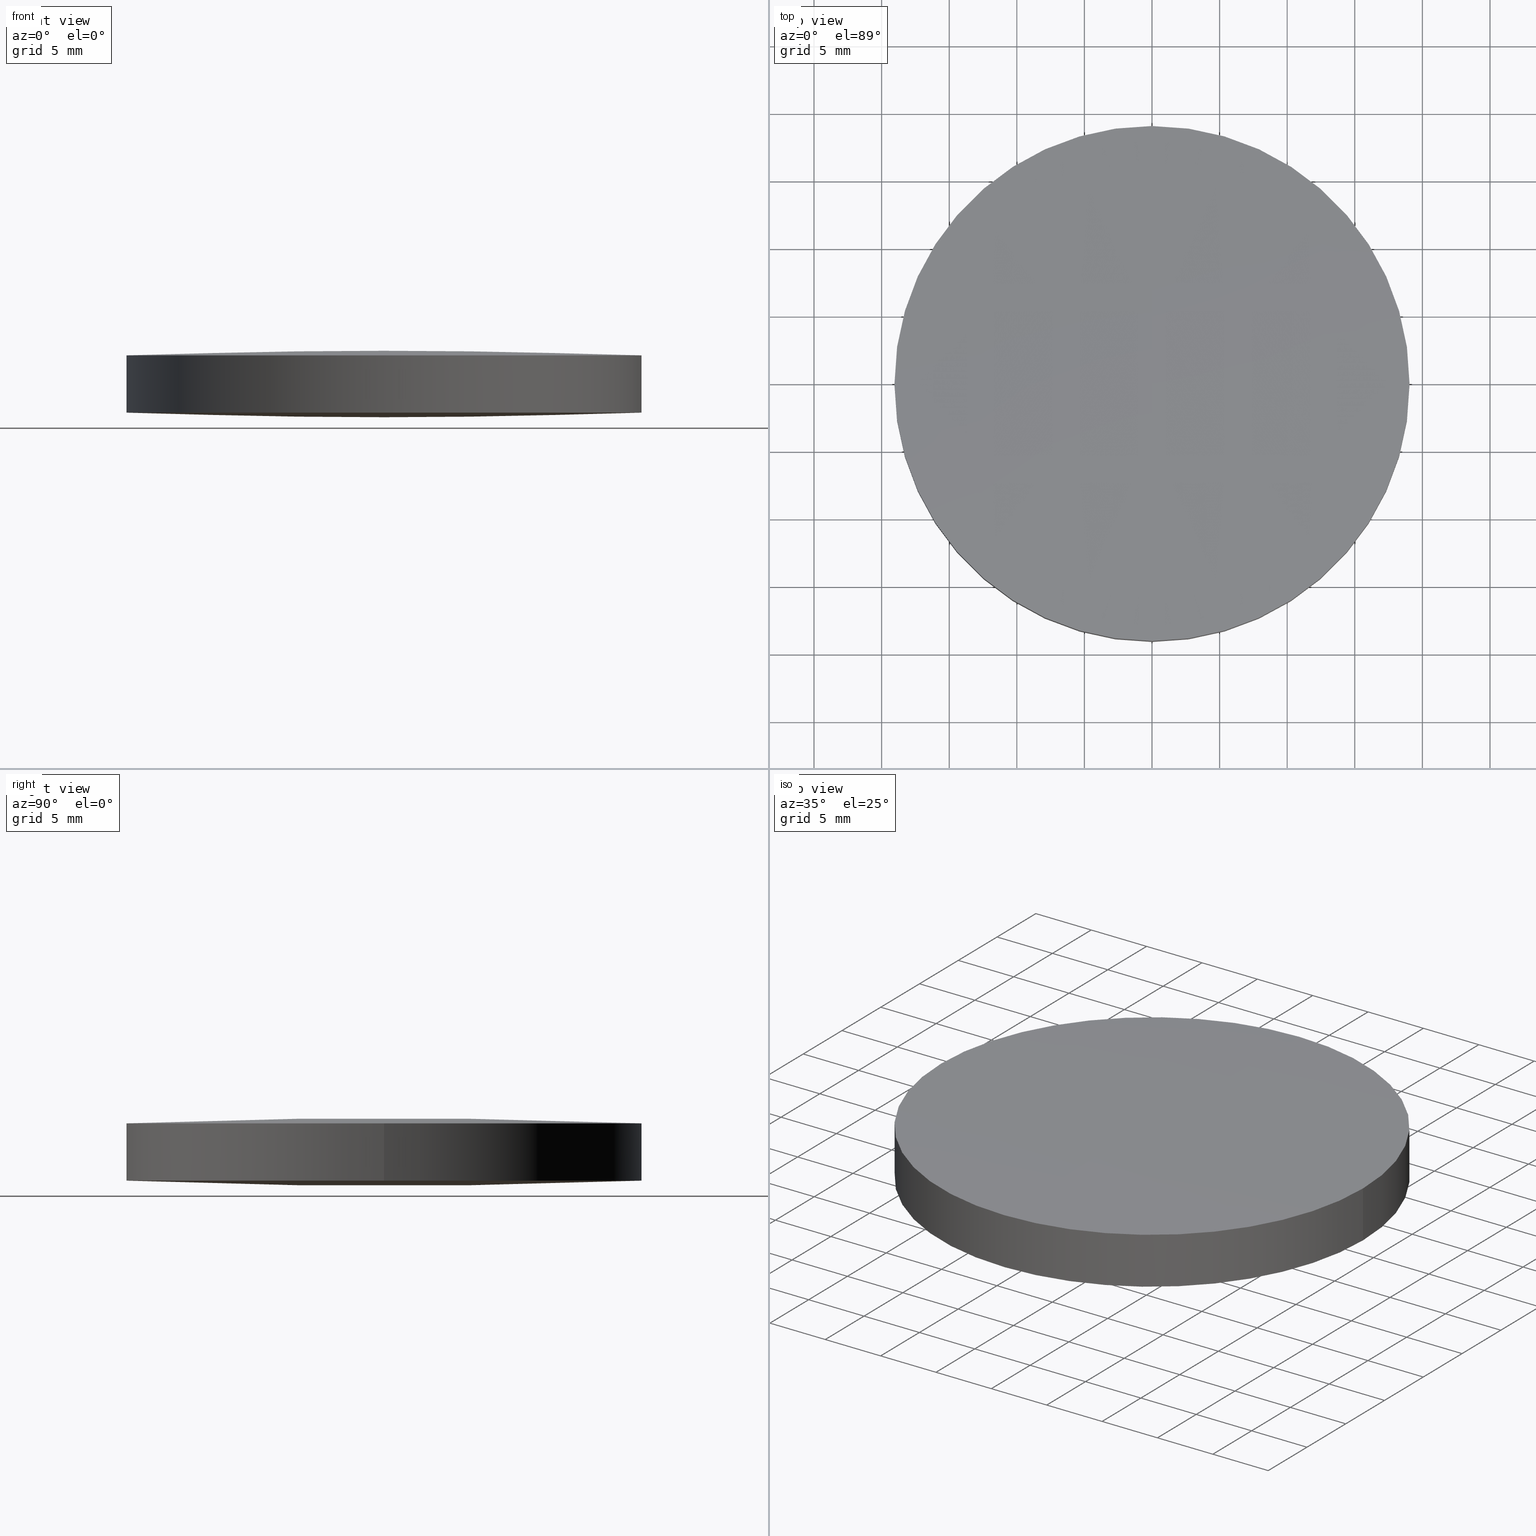
[diagram: canonical four-view strip — front | top / right | iso, engineering-drawing reading convention]
A machine part, canonical four-view strip (front | top / right | iso — engineering-drawing reading convention). The complete STEP part file that produces these views, byte-faithful:
ISO-10303-21;
HEADER;
FILE_DESCRIPTION (( 'STEP AP203' ),
    '1' );
FILE_NAME ('111-1434E UVFS bi-cx 38.1 F500.STEP',
    '2019-01-08T07:55:42',
    ( '' ),
    ( '' ),
    'SwSTEP 2.0',
    'SolidWorks 2017',
    '' );
FILE_SCHEMA (( 'CONFIG_CONTROL_DESIGN' ));
ENDSEC;

DATA;
#1 = EDGE_CURVE ( 'NONE', #210, #95, #18, .T. ) ;
#2 = ORIENTED_EDGE ( 'NONE', *, *, #119, .F. ) ;
#3 = DIRECTION ( 'NONE',  ( 1.000000000000000000, 0.0000000000000000000, 0.0000000000000000000 ) ) ;
#4 = CARTESIAN_POINT ( 'NONE',  ( 0.0000000000000000000, -2.842170943040400100E-014, 475.2641939237290700 ) ) ;
#5 = ORIENTED_EDGE ( 'NONE', *, *, #215, .F. ) ;
#6 = CARTESIAN_POINT ( 'NONE',  ( -19.16949876273363200, -6.429686377467061400, 4.743813318143864400 ) ) ;
#7 = CARTESIAN_POINT ( 'NONE',  ( -19.14846515180225600, 19.27847528127603700, 4.222613795022307500 ) ) ;
#8 = MANIFOLD_SOLID_BREP ( 'Imported1', #145 ) ;
#9 = CARTESIAN_POINT ( 'NONE',  ( 19.04999999999999700, -8.881784197001250400E-016, 4.618056245691300400 ) ) ;
#10 = DIRECTION ( 'NONE',  ( -2.913971193241879900E-018, -1.358596498406960000E-034, -1.000000000000000000 ) ) ;
#11 = DIRECTION ( 'NONE',  ( 1.000000000000000000, 0.0000000000000000000, 0.0000000000000000000 ) ) ;
#12 = CARTESIAN_POINT ( 'NONE',  ( 12.76867264870312900, 19.27847528127602700, 0.5199222830434634400 ) ) ;
#13 = SECURITY_CLASSIFICATION ( '', '', #209 ) ;
#14 = PERSON_AND_ORGANIZATION_ROLE ( 'creator' ) ;
#15 = APPROVAL_STATUS ( 'not_yet_approved' ) ;
#16 = PERSON_AND_ORGANIZATION ( #157, #289 ) ;
#17 = MECHANICAL_CONTEXT ( 'NONE', #237, 'mechanical' ) ;
#18 = CIRCLE ( 'NONE', #91, 19.05000000000000100 ) ;
#19 = CIRCLE ( 'NONE', #103, 475.2641939237290700 ) ;
#20 = AXIS2_PLACEMENT_3D ( 'NONE', #242, #197, #80 ) ;
#21 = APPROVAL_DATE_TIME ( #202, #71 ) ;
#22 = CC_DESIGN_DATE_AND_TIME_ASSIGNMENT ( #201, #115, ( #193 ) ) ;
#23 = ORIENTED_EDGE ( 'NONE', *, *, #61, .F. ) ;
#24 = LOCAL_TIME ( 9, 55, 41.00000000000000000, #150 ) ;
#25 = CARTESIAN_POINT ( 'NONE',  ( 19.16949876273368500, -6.429686377467067600, 0.2561866818561408500 ) ) ;
#26 = CARTESIAN_POINT ( 'NONE',  ( 0.0000000000000000000, -2.842170943040400100E-014, -470.2641939237290100 ) ) ;
#27 = LINE ( 'NONE', #130, #135 ) ;
#28 = CARTESIAN_POINT ( 'NONE',  ( -12.78269838342802700, -6.429686377467062300, -0.001560051045970624200 ) ) ;
#29 = CARTESIAN_POINT ( 'NONE',  ( -19.14846515180224900, -19.27847528127615800, 4.222613795022307500 ) ) ;
#30 = PRODUCT ( '111-1434E UVFS bi-cx 38.1 F500', '111-1434E UVFS bi-cx 38.1 F500', '', ( #17 ) ) ;
#31 = CARTESIAN_POINT ( 'NONE',  ( 6.384985517109417000, 19.27847528127603000, 0.3911641391337580800 ) ) ;
#32 = CIRCLE ( 'NONE', #277, 475.2641939237290700 ) ;
#33 = DIRECTION ( 'NONE',  ( 2.913971193241879900E-018, 1.358596498406960000E-034, 1.000000000000000000 ) ) ;
#34 = PERSON_AND_ORGANIZATION ( #157, #289 ) ;
#35 = CARTESIAN_POINT ( 'NONE',  ( 6.391999097577104800, -6.429686377467057000, 5.130459629200199600 ) ) ;
#36 = FACE_OUTER_BOUND ( 'NONE', #230, .T. ) ;
#37 = ORIENTED_EDGE ( 'NONE', *, *, #244, .F. ) ;
#38 = APPROVAL_STATUS ( 'not_yet_approved' ) ;
#39 = EDGE_CURVE ( 'NONE', #56, #210, #100, .T. ) ;
#40 = COORDINATED_UNIVERSAL_TIME_OFFSET ( 2, 0, .AHEAD. ) ;
#41 = VERTEX_POINT ( 'NONE', #222 ) ;
#42 = ORIENTED_EDGE ( 'NONE', *, *, #52, .F. ) ;
#43 = APPROVAL_PERSON_ORGANIZATION ( #93, #134, #291 ) ;
#44 = DIRECTION ( 'NONE',  ( 1.000000000000000000, -2.445677697528830200E-016, -2.113563270613760000E-016 ) ) ;
#45 = CARTESIAN_POINT ( 'NONE',  ( 19.14846515180230600, 19.27847528127603000, 0.7773862049776968400 ) ) ;
#46 = CARTESIAN_POINT ( 'NONE',  ( -12.78269838342802700, 6.429686377466937100, -0.001560051045968672700 ) ) ;
#47 = CARTESIAN_POINT ( 'NONE',  ( -12.76867264870308500, -19.27847528127615500, 4.480077716956539100 ) ) ;
#48 = CARTESIAN_POINT ( 'NONE',  ( -12.78269838342772300, 6.429686377466939700, 5.001560051045965200 ) ) ;
#49 = ORIENTED_EDGE ( 'NONE', *, *, #286, .T. ) ;
#50 = DIRECTION ( 'NONE',  ( -2.913971193241879900E-018, -1.358596498406960000E-034, -1.000000000000000000 ) ) ;
#51 = PRODUCT_DEFINITION_FORMATION_WITH_SPECIFIED_SOURCE ( 'ANY', '', #30, .NOT_KNOWN. ) ;
#52 = EDGE_CURVE ( 'NONE', #68, #225, #32, .T. ) ;
#53 = CARTESIAN_POINT ( 'NONE',  ( 19.16949876273392700, -6.429686377467053400, 4.743813318143868000 ) ) ;
#54 = CYLINDRICAL_SURFACE ( 'NONE', #163, 19.05000000000000100 ) ;
#55 = APPROVAL_STATUS ( 'not_yet_approved' ) ;
#56 = VERTEX_POINT ( 'NONE', #169 ) ;
#57 = DATE_AND_TIME ( #154, #283 ) ;
#58 = EDGE_LOOP ( 'NONE', ( #5, #240, #101 ) ) ;
#59 = CARTESIAN_POINT ( 'NONE',  ( -4.662936703425659800E-015, -8.881784197001250400E-016, 0.3819437543087000300 ) ) ;
#60 = CC_DESIGN_PERSON_AND_ORGANIZATION_ASSIGNMENT ( #198, #232, ( #13 ) ) ;
#61 = EDGE_CURVE ( 'NONE', #89, #41, #196, .T. ) ;
#62 = CARTESIAN_POINT ( 'NONE',  ( -19.05000000000000400, 1.444773732675583000E-015, 0.3819437543087000900 ) ) ;
#63 = CARTESIAN_POINT ( 'NONE',  ( 9.565252569200171800E-014, 19.27847528127604100, 4.608835860866245000 ) ) ;
#64 = CARTESIAN_POINT ( 'NONE',  ( 19.14846515180229500, -19.27847528127616500, 0.7773862049776968400 ) ) ;
#65 = CARTESIAN_POINT ( 'NONE',  ( -2.151057110211241000E-013, 6.429686377466934400, -0.1304596292001961300 ) ) ;
#66 = CARTESIAN_POINT ( 'NONE',  ( -6.384985517109697600, 19.27847528127603000, 0.3911641391337928900 ) ) ;
#67 = DIRECTION ( 'NONE',  ( 1.000000000000000000, 0.0000000000000000000, -2.845674993400274200E-018 ) ) ;
#68 = VERTEX_POINT ( 'NONE', #248 ) ;
#69 = CIRCLE ( 'NONE', #142, 19.05000000000000100 ) ;
#70 = CARTESIAN_POINT ( 'NONE',  ( 19.14846515180254700, 19.27847528127604400, 4.222613795022311900 ) ) ;
#71 = APPROVAL ( #55, 'UNSPECIFIED' ) ;
#72 = DIRECTION ( 'NONE',  ( 0.0000000000000000000, 0.0000000000000000000, 1.000000000000000000 ) ) ;
#73 = PERSON_AND_ORGANIZATION_ROLE ( 'creator' ) ;
#74 = FACE_OUTER_BOUND ( 'NONE', #133, .T. ) ;
#75 = ADVANCED_FACE ( 'NONE', ( #288 ), #84, .T. ) ;
#76 = EDGE_CURVE ( 'NONE', #68, #89, #261, .T. ) ;
#77 = FACE_OUTER_BOUND ( 'NONE', #58, .T. ) ;
#78 = CALENDAR_DATE ( 2019, 8, 1 ) ;
#79 = ORIENTED_EDGE ( 'NONE', *, *, #1, .T. ) ;
#80 = DIRECTION ( 'NONE',  ( 1.000000000000000000, 8.881784197001252300E-016, 0.0000000000000000000 ) ) ;
#81 = COORDINATED_UNIVERSAL_TIME_OFFSET ( 2, 0, .AHEAD. ) ;
#82 = CARTESIAN_POINT ( 'NONE',  ( -9.571035216865770700E-014, 19.05000000000014300, 0.3819437543087111400 ) ) ;
#83 = CARTESIAN_POINT ( 'NONE',  ( -4.650592793654439200E-015, -8.881784197001250400E-016, 4.618056245691300400 ) ) ;
#84 = CYLINDRICAL_SURFACE ( 'NONE', #183, 19.05000000000000100 ) ;
#85 = CARTESIAN_POINT ( 'NONE',  ( -6.384985517109390300, -19.27847528127615100, 4.608835860866245900 ) ) ;
#86 = COORDINATED_UNIVERSAL_TIME_OFFSET ( 2, 0, .AHEAD. ) ;
#87 = CARTESIAN_POINT ( 'NONE',  ( -6.384985517109704700, -19.27847528127615800, 0.3911641391337929400 ) ) ;
#88 = CARTESIAN_POINT ( 'NONE',  ( -9.890517382201484500E-014, 6.429686377466935300, -0.1304596292002267200 ) ) ;
#89 = VERTEX_POINT ( 'NONE', #62 ) ;
#90 = CARTESIAN_POINT ( 'NONE',  ( -4.662936703425659800E-015, -8.881784197001250400E-016, 0.3819437543087000300 ) ) ;
#91 = AXIS2_PLACEMENT_3D ( 'NONE', #83, #223, #3 ) ;
#92 = CARTESIAN_POINT ( 'NONE',  ( 6.391999097577104800, 6.429686377466943300, 5.130459629200198700 ) ) ;
#93 = PERSON_AND_ORGANIZATION ( #157, #289 ) ;
#94 = APPLICATION_PROTOCOL_DEFINITION ( 'international standard', 'config_control_design', 1994, #237 ) ;
#95 = VERTEX_POINT ( 'NONE', #151 ) ;
#96 = CARTESIAN_POINT ( 'NONE',  ( 6.384985517109697600, 19.27847528127603700, 4.608835860866211200 ) ) ;
#97 = AXIS2_PLACEMENT_3D ( 'NONE', #59, #228, #153 ) ;
#98 = ORIENTED_EDGE ( 'NONE', *, *, #265, .F. ) ;
#99 = CC_DESIGN_PERSON_AND_ORGANIZATION_ASSIGNMENT ( #34, #141, ( #51 ) ) ;
#100 = CIRCLE ( 'NONE', #20, 19.05000000000000100 ) ;
#101 = ORIENTED_EDGE ( 'NONE', *, *, #168, .F. ) ;
#102 = CARTESIAN_POINT ( 'NONE',  ( -4.662936703425659800E-015, -8.881784197001250400E-016, 0.3819437543087000300 ) ) ;
#103 = AXIS2_PLACEMENT_3D ( 'NONE', #26, #275, #175 ) ;
#104 = DIRECTION ( 'NONE',  ( -2.445677697528829200E-016, -1.000000000000000000, 2.336012346015964100E-016 ) ) ;
#105 = ORIENTED_EDGE ( 'NONE', *, *, #286, .F. ) ;
#106 = CARTESIAN_POINT ( 'NONE',  ( -2.081668171172168500E-013, 19.27847528127603400, 0.3911641391337900600 ) ) ;
#107 = CARTESIAN_POINT ( 'NONE',  ( -19.14846515180254700, 19.27847528127603700, 0.7773862049776925100 ) ) ;
#108 = CARTESIAN_POINT ( 'NONE',  ( 6.384985517109407200, -19.27847528127615800, 0.3911641391337580800 ) ) ;
#109 = ORIENTED_EDGE ( 'NONE', *, *, #76, .F. ) ;
#110 = CARTESIAN_POINT ( 'NONE',  ( 6.391999097576814400, 6.429686377466933500, -0.1304596292002280800 ) ) ;
#111 = APPLICATION_CONTEXT ( 'configuration controlled 3d designs of mechanical parts and assemblies' ) ;
#112 = VECTOR ( 'NONE', #269, 1000.000000000000000 ) ;
#113 = CARTESIAN_POINT ( 'NONE',  ( 19.14846515180255400, -19.27847528127615100, 4.222613795022311900 ) ) ;
#114 = CARTESIAN_POINT ( 'NONE',  ( 2.151057110211241000E-013, -6.429686377467057800, 5.130459629200202300 ) ) ;
#115 = DATE_TIME_ROLE ( 'creation_date' ) ;
#116 = CC_DESIGN_APPROVAL ( #71, ( #193 ) ) ;
#117 = EDGE_LOOP ( 'NONE', ( #98, #221, #216, #166, #37, #2 ) ) ;
#118 = COORDINATED_UNIVERSAL_TIME_OFFSET ( 2, 0, .AHEAD. ) ;
#119 = EDGE_CURVE ( 'NONE', #225, #255, #267, .T. ) ;
#120 = DIRECTION ( 'NONE',  ( -2.913971193241879900E-018, -1.358596498406960000E-034, -1.000000000000000000 ) ) ;
#121 = EDGE_LOOP ( 'NONE', ( #42, #167, #270 ) ) ;
#122 = CARTESIAN_POINT ( 'NONE',  ( -19.14846515180255400, -19.27847528127615800, 0.7773862049776925100 ) ) ;
#123 = CARTESIAN_POINT ( 'NONE',  ( -1.050823130995572400E-013, -19.27847528127616200, 0.3911641391337594700 ) ) ;
#124 = CARTESIAN_POINT ( 'NONE',  ( 9.890517382201487000E-014, 6.429686377466942400, 5.130459629200231600 ) ) ;
#125 = CC_DESIGN_PERSON_AND_ORGANIZATION_ASSIGNMENT ( #188, #73, ( #193 ) ) ;
#126 = EDGE_CURVE ( 'NONE', #95, #56, #19, .T. ) ;
#127 = CARTESIAN_POINT ( 'NONE',  ( -12.76867264870339000, 19.27847528127603400, 0.5199222830434565600 ) ) ;
#128 = CARTESIAN_POINT ( 'NONE',  ( 12.78269838342775700, 6.429686377466932600, -0.001560051045961950600 ) ) ;
#129 = CARTESIAN_POINT ( 'NONE',  ( 19.16949876273368900, 6.429686377466930800, 0.2561866818561427900 ) ) ;
#130 = CARTESIAN_POINT ( 'NONE',  ( 19.04999999999999700, -8.881784197001250400E-016, 0.3819437543086999200 ) ) ;
#131 = PRODUCT_DEFINITION_SHAPE ( 'NONE', 'NONE',  #193 ) ;
#132 = CARTESIAN_POINT ( 'NONE',  ( 2.081668171172168500E-013, 19.27847528127604100, 4.608835860866214800 ) ) ;
#133 = EDGE_LOOP ( 'NONE', ( #23, #109, #105, #158, #79, #165 ) ) ;
#134 = APPROVAL ( #15, 'UNSPECIFIED' ) ;
#135 = VECTOR ( 'NONE', #156, 1000.000000000000000 ) ;
#136 = CARTESIAN_POINT ( 'NONE',  ( 0.0000000000000000000, 0.0000000000000000000, 0.0000000000000000000 ) ) ;
#137 = APPROVAL_DATE_TIME ( #57, #182 ) ;
#138 = LOCAL_TIME ( 9, 55, 41.00000000000000000, #40 ) ;
#139 = CARTESIAN_POINT ( 'NONE',  ( 12.78269838342802700, 6.429686377466944200, 5.001560051045973200 ) ) ;
#140 = CARTESIAN_POINT ( 'NONE',  ( 19.16949876273392700, 6.429686377466945900, 4.743813318143867100 ) ) ;
#141 = PERSON_AND_ORGANIZATION_ROLE ( 'design_supplier' ) ;
#142 = AXIS2_PLACEMENT_3D ( 'NONE', #227, #252, #11 ) ;
#143 = PERSON_AND_ORGANIZATION ( #157, #289 ) ;
#144 = ADVANCED_FACE ( 'NONE', ( #256 ), #170, .T. ) ;
#145 = CLOSED_SHELL ( 'NONE', ( #164, #217, #75, #144, #263, #295 ) ) ;
#146 = APPROVAL_PERSON_ORGANIZATION ( #220, #71, #214 ) ;
#147 = AXIS2_PLACEMENT_3D ( 'NONE', #136, #72, #233 ) ;
#148 = AXIS2_PLACEMENT_3D ( 'NONE', #254, #235, #185 ) ;
#149 = AXIS2_PLACEMENT_3D ( 'NONE', #276, #10, #249 ) ;
#150 = COORDINATED_UNIVERSAL_TIME_OFFSET ( 2, 0, .AHEAD. ) ;
#151 = CARTESIAN_POINT ( 'NONE',  ( 1.050283841962426500E-013, -19.05000000000017100, 4.618056245691290600 ) ) ;
#152 = CARTESIAN_POINT ( 'NONE',  ( -9.565252569200169300E-014, 19.27847528127603400, 0.3911641391337594700 ) ) ;
#153 = DIRECTION ( 'NONE',  ( 1.000000000000000000, -1.776356839400250500E-015, -2.845674993400274200E-018 ) ) ;
#154 = CALENDAR_DATE ( 2019, 8, 1 ) ;
#155 = CARTESIAN_POINT ( 'NONE',  ( -2.151057110211240800E-013, -19.27847528127616200, 0.3911641391337901700 ) ) ;
#156 = DIRECTION ( 'NONE',  ( 2.913971193241879900E-018, 1.358596498406960000E-034, 1.000000000000000000 ) ) ;
#157 = PERSON ( 'UNSPECIFIED', 'UNSPECIFIED', 'UNSPECIFIED', ('UNSPECIFIED'), ('UNSPECIFIED'), ('UNSPECIFIED') ) ;
#158 = ORIENTED_EDGE ( 'NONE', *, *, #244, .T. ) ;
#159 = DATE_TIME_ROLE ( 'classification_date' ) ;
#160 = ORIENTED_EDGE ( 'NONE', *, *, #39, .F. ) ;
#161 = CC_DESIGN_APPROVAL ( #182, ( #13 ) ) ;
#162 = PERSON_AND_ORGANIZATION_ROLE ( 'design_owner' ) ;
#163 = AXIS2_PLACEMENT_3D ( 'NONE', #247, #33, #181 ) ;
#164 = ADVANCED_FACE ( 'NONE', ( #36 ), #293, .T. ) ;
#165 = ORIENTED_EDGE ( 'NONE', *, *, #215, .T. ) ;
#166 = ORIENTED_EDGE ( 'NONE', *, *, #39, .T. ) ;
#167 = ORIENTED_EDGE ( 'NONE', *, *, #76, .T. ) ;
#168 = EDGE_CURVE ( 'NONE', #41, #56, #69, .T. ) ;
#169 = CARTESIAN_POINT ( 'NONE',  ( 9.571035216865772000E-014, 19.05000000000014300, 4.618056245691290600 ) ) ;
#170 =( BOUNDED_SURFACE ( )  B_SPLINE_SURFACE ( 3, 3, ( 
 ( #122, #245, #87, #155 ),
 ( #250, #28, #226, #178 ),
 ( #205, #46, #203, #65 ),
 ( #107, #127, #66, #106 ) ),
 .UNSPECIFIED., .F., .F., .F. ) 
 B_SPLINE_SURFACE_WITH_KNOTS ( ( 4, 4 ),
 ( 4, 4 ),
 ( 0.0000000000000000000, 1.000000000000000000 ),
 ( 0.0000000000000000000, 1.000000000000000000 ),
 .UNSPECIFIED. ) 
 GEOMETRIC_REPRESENTATION_ITEM ( )  RATIONAL_B_SPLINE_SURFACE ( (
 ( 1.000000000000000000, 0.9998644334679308600, 0.9998644334679308600, 1.000000000000000000),
 ( 0.9994513028835543300, 0.9993158107364503700, 0.9993158107364503700, 0.9994513028835543300),
 ( 0.9994513028835543300, 0.9993158107364503700, 0.9993158107364503700, 0.9994513028835543300),
 ( 1.000000000000000000, 0.9998644334679308600, 0.9998644334679308600, 1.000000000000000000) ) ) 
 REPRESENTATION_ITEM ( '' )  SURFACE ( )  );
#171 = DIRECTION ( 'NONE',  ( 2.913971193241879900E-018, 1.358596498406960000E-034, 1.000000000000000000 ) ) ;
#172 = LOCAL_TIME ( 9, 55, 41.00000000000000000, #118 ) ;
#173 = CIRCLE ( 'NONE', #194, 19.05000000000000100 ) ;
#174 = CARTESIAN_POINT ( 'NONE',  ( -4.662936703425659800E-015, -8.881784197001250400E-016, 0.3819437543086999800 ) ) ;
#175 = DIRECTION ( 'NONE',  ( 2.445677697528829700E-016, -1.000000000000000000, 0.0000000000000000000 ) ) ;
#176 = CARTESIAN_POINT ( 'NONE',  ( 12.76867264870311800, -19.27847528127616200, 0.5199222830434634400 ) ) ;
#177 = CC_DESIGN_PERSON_AND_ORGANIZATION_ASSIGNMENT ( #218, #14, ( #51 ) ) ;
#178 = CARTESIAN_POINT ( 'NONE',  ( -2.151057110211241000E-013, -6.429686377467065000, -0.1304596292001978500 ) ) ;
#179 = CARTESIAN_POINT ( 'NONE',  ( -6.391999097576797500, 6.429686377466940600, 5.130459629200233400 ) ) ;
#180 =( NAMED_UNIT ( * ) PLANE_ANGLE_UNIT ( ) SI_UNIT ( $, .RADIAN. ) );
#181 = DIRECTION ( 'NONE',  ( 1.000000000000000000, 0.0000000000000000000, -2.845674993400274200E-018 ) ) ;
#182 = APPROVAL ( #38, 'UNSPECIFIED' ) ;
#183 = AXIS2_PLACEMENT_3D ( 'NONE', #174, #171, #195 ) ;
#184 = ADVANCED_BREP_SHAPE_REPRESENTATION ( '111-1434E UVFS bi-cx 38.1 F500', ( #8, #147 ), #262 ) ;
#185 = DIRECTION ( 'NONE',  ( 1.000000000000000000, 8.881784197001252300E-016, -2.845674993400274200E-018 ) ) ;
#186 =( LENGTH_UNIT ( ) NAMED_UNIT ( * ) SI_UNIT ( .MILLI., .METRE. ) );
#187 = APPLICATION_PROTOCOL_DEFINITION ( 'international standard', 'config_control_design', 1994, #111 ) ;
#188 = PERSON_AND_ORGANIZATION ( #157, #289 ) ;
#189 = SHAPE_DEFINITION_REPRESENTATION ( #131, #184 ) ;
#190 = AXIS2_PLACEMENT_3D ( 'NONE', #102, #120, #224 ) ;
#191 = DESIGN_CONTEXT ( 'detailed design', #111, 'design' ) ;
#192 = CIRCLE ( 'NONE', #149, 19.05000000000000100 ) ;
#193 = PRODUCT_DEFINITION ( 'UNKNOWN', '', #51, #191 ) ;
#194 = AXIS2_PLACEMENT_3D ( 'NONE', #90, #50, #67 ) ;
#195 = DIRECTION ( 'NONE',  ( 1.000000000000000000, 0.0000000000000000000, -2.845674993400274200E-018 ) ) ;
#196 = LINE ( 'NONE', #271, #112 ) ;
#197 = DIRECTION ( 'NONE',  ( -2.913971193241879900E-018, -1.358596498406960000E-034, -1.000000000000000000 ) ) ;
#198 = PERSON_AND_ORGANIZATION ( #157, #289 ) ;
#199 = CARTESIAN_POINT ( 'NONE',  ( 1.050823130995572600E-013, -19.27847528127615500, 4.608835860866245000 ) ) ;
#200 = CARTESIAN_POINT ( 'NONE',  ( -6.391999097576794000, -6.429686377467059600, 5.130459629200235100 ) ) ;
#201 = DATE_AND_TIME ( #219, #172 ) ;
#202 = DATE_AND_TIME ( #268, #251 ) ;
#203 = CARTESIAN_POINT ( 'NONE',  ( -6.391999097577104800, 6.429686377466936200, -0.1304596292001932400 ) ) ;
#204 = CARTESIAN_POINT ( 'NONE',  ( -1.020501619371100500E-013, -6.429686377467064100, -0.1304596292002286900 ) ) ;
#205 = CARTESIAN_POINT ( 'NONE',  ( -19.16949876273392700, 6.429686377466938800, 0.2561866818561384700 ) ) ;
#206 = CARTESIAN_POINT ( 'NONE',  ( -12.76867264870309200, 19.27847528127603400, 4.480077716956539100 ) ) ;
#207 = CARTESIAN_POINT ( 'NONE',  ( -19.16949876273363500, 6.429686377466937900, 4.743813318143862600 ) ) ;
#208 = CC_DESIGN_APPROVAL ( #134, ( #51 ) ) ;
#209 = SECURITY_CLASSIFICATION_LEVEL ( 'unclassified' ) ;
#210 = VERTEX_POINT ( 'NONE', #9 ) ;
#211 =( BOUNDED_SURFACE ( )  B_SPLINE_SURFACE ( 3, 3, ( 
 ( #199, #85, #47, #29 ),
 ( #279, #200, #274, #6 ),
 ( #124, #179, #48, #207 ),
 ( #63, #231, #206, #7 ) ),
 .UNSPECIFIED., .F., .F., .F. ) 
 B_SPLINE_SURFACE_WITH_KNOTS ( ( 4, 4 ),
 ( 4, 4 ),
 ( 0.0000000000000000000, 1.000000000000000000 ),
 ( 0.0000000000000000000, 1.000000000000000000 ),
 .UNSPECIFIED. ) 
 GEOMETRIC_REPRESENTATION_ITEM ( )  RATIONAL_B_SPLINE_SURFACE ( (
 ( 1.000000000000000000, 0.9998644334679308600, 0.9998644334679308600, 1.000000000000000000),
 ( 0.9994513028835543300, 0.9993158107364503700, 0.9993158107364503700, 0.9994513028835543300),
 ( 0.9994513028835543300, 0.9993158107364503700, 0.9993158107364503700, 0.9994513028835543300),
 ( 1.000000000000000000, 0.9998644334679308600, 0.9998644334679308600, 1.000000000000000000) ) ) 
 REPRESENTATION_ITEM ( '' )  SURFACE ( )  );
#212 = APPROVAL_PERSON_ORGANIZATION ( #143, #182, #239 ) ;
#213 = CARTESIAN_POINT ( 'NONE',  ( 2.151057110211241000E-013, 6.429686377466941500, 5.130459629200201400 ) ) ;
#214 = APPROVAL_ROLE ( '' ) ;
#215 = EDGE_CURVE ( 'NONE', #95, #41, #192, .T. ) ;
#216 = ORIENTED_EDGE ( 'NONE', *, *, #168, .T. ) ;
#217 = ADVANCED_FACE ( 'NONE', ( #77 ), #211, .T. ) ;
#218 = PERSON_AND_ORGANIZATION ( #157, #289 ) ;
#219 = CALENDAR_DATE ( 2019, 8, 1 ) ;
#220 = PERSON_AND_ORGANIZATION ( #157, #289 ) ;
#221 = ORIENTED_EDGE ( 'NONE', *, *, #61, .T. ) ;
#222 = CARTESIAN_POINT ( 'NONE',  ( -19.05000000000000400, 1.444773732675583000E-015, 4.618056245691300400 ) ) ;
#223 = DIRECTION ( 'NONE',  ( -2.913971193241879900E-018, -1.358596498406960000E-034, -1.000000000000000000 ) ) ;
#224 = DIRECTION ( 'NONE',  ( 1.000000000000000000, 0.0000000000000000000, -2.845674993400274200E-018 ) ) ;
#225 = VERTEX_POINT ( 'NONE', #82 ) ;
#226 = CARTESIAN_POINT ( 'NONE',  ( -6.391999097577104800, -6.429686377467063200, -0.1304596292001950200 ) ) ;
#227 = CARTESIAN_POINT ( 'NONE',  ( -4.650592793654439200E-015, -8.881784197001250400E-016, 4.618056245691300400 ) ) ;
#228 = DIRECTION ( 'NONE',  ( -2.913971193241879900E-018, -1.358596498406960000E-034, -1.000000000000000000 ) ) ;
#229 = CARTESIAN_POINT ( 'NONE',  ( 12.78269838342775300, -6.429686377467066700, -0.001560051045963793800 ) ) ;
#230 = EDGE_LOOP ( 'NONE', ( #49, #243, #292 ) ) ;
#231 = CARTESIAN_POINT ( 'NONE',  ( -6.384985517109400100, 19.27847528127603700, 4.608835860866245900 ) ) ;
#232 = PERSON_AND_ORGANIZATION_ROLE ( 'classification_officer' ) ;
#233 = DIRECTION ( 'NONE',  ( 1.000000000000000000, 0.0000000000000000000, 0.0000000000000000000 ) ) ;
#234 = CC_DESIGN_PERSON_AND_ORGANIZATION_ASSIGNMENT ( #16, #162, ( #30 ) ) ;
#235 = DIRECTION ( 'NONE',  ( -2.913971193241879900E-018, -1.358596498406960000E-034, -1.000000000000000000 ) ) ;
#236 = CIRCLE ( 'NONE', #148, 19.05000000000000100 ) ;
#237 = APPLICATION_CONTEXT ( 'configuration controlled 3d designs of mechanical parts and assemblies' ) ;
#238 = ORIENTED_EDGE ( 'NONE', *, *, #126, .F. ) ;
#239 = APPROVAL_ROLE ( '' ) ;
#240 = ORIENTED_EDGE ( 'NONE', *, *, #126, .T. ) ;
#241 = FACE_OUTER_BOUND ( 'NONE', #264, .T. ) ;
#242 = CARTESIAN_POINT ( 'NONE',  ( -4.650592793654439200E-015, -8.881784197001250400E-016, 4.618056245691300400 ) ) ;
#243 = ORIENTED_EDGE ( 'NONE', *, *, #52, .T. ) ;
#244 = EDGE_CURVE ( 'NONE', #255, #210, #27, .T. ) ;
#245 = CARTESIAN_POINT ( 'NONE',  ( -12.76867264870339500, -19.27847528127615500, 0.5199222830434565600 ) ) ;
#246 = UNCERTAINTY_MEASURE_WITH_UNIT (LENGTH_MEASURE( 1.000000000000000100E-005 ), #186, 'distance_accuracy_value', 'NONE');
#247 = CARTESIAN_POINT ( 'NONE',  ( -4.662936703425659800E-015, -8.881784197001250400E-016, 0.3819437543086999800 ) ) ;
#248 = CARTESIAN_POINT ( 'NONE',  ( -1.050283841962426400E-013, -19.05000000000017100, 0.3819437543087111400 ) ) ;
#249 = DIRECTION ( 'NONE',  ( 1.000000000000000000, 0.0000000000000000000, 0.0000000000000000000 ) ) ;
#250 = CARTESIAN_POINT ( 'NONE',  ( -19.16949876273392700, -6.429686377467060500, 0.2561866818561364700 ) ) ;
#251 = LOCAL_TIME ( 9, 55, 41.00000000000000000, #86 ) ;
#252 = DIRECTION ( 'NONE',  ( -2.913971193241879900E-018, -1.358596498406960000E-034, -1.000000000000000000 ) ) ;
#253 = PRODUCT_RELATED_PRODUCT_CATEGORY ( 'detail', '', ( #30 ) ) ;
#254 = CARTESIAN_POINT ( 'NONE',  ( -4.662936703425659800E-015, -8.881784197001250400E-016, 0.3819437543087000300 ) ) ;
#255 = VERTEX_POINT ( 'NONE', #280 ) ;
#256 = FACE_OUTER_BOUND ( 'NONE', #121, .T. ) ;
#257 =( NAMED_UNIT ( * ) SI_UNIT ( $, .STERADIAN. ) SOLID_ANGLE_UNIT ( ) );
#258 = DATE_AND_TIME ( #266, #24 ) ;
#259 = CARTESIAN_POINT ( 'NONE',  ( 12.78269838342802700, -6.429686377467056100, 5.001560051045974100 ) ) ;
#260 = CARTESIAN_POINT ( 'NONE',  ( 12.76867264870339500, -19.27847528127614800, 4.480077716956547100 ) ) ;
#261 = CIRCLE ( 'NONE', #190, 19.05000000000000100 ) ;
#262 =( GEOMETRIC_REPRESENTATION_CONTEXT ( 3 ) GLOBAL_UNCERTAINTY_ASSIGNED_CONTEXT ( ( #246 ) ) GLOBAL_UNIT_ASSIGNED_CONTEXT ( ( #186, #180, #257 ) ) REPRESENTATION_CONTEXT ( 'NONE', 'WORKASPACE' ) );
#263 = ADVANCED_FACE ( 'NONE', ( #74 ), #54, .T. ) ;
#264 = EDGE_LOOP ( 'NONE', ( #238, #281, #160 ) ) ;
#265 = EDGE_CURVE ( 'NONE', #89, #225, #236, .T. ) ;
#266 = CALENDAR_DATE ( 2019, 8, 1 ) ;
#267 = CIRCLE ( 'NONE', #97, 19.05000000000000100 ) ;
#268 = CALENDAR_DATE ( 2019, 8, 1 ) ;
#269 = DIRECTION ( 'NONE',  ( 2.913971193241879900E-018, 1.358596498406960000E-034, 1.000000000000000000 ) ) ;
#270 = ORIENTED_EDGE ( 'NONE', *, *, #265, .T. ) ;
#271 = CARTESIAN_POINT ( 'NONE',  ( -19.05000000000000400, 1.444773732675583000E-015, 0.3819437543087000300 ) ) ;
#272 = DATE_AND_TIME ( #78, #138 ) ;
#273 = CARTESIAN_POINT ( 'NONE',  ( 6.391999097576810800, -6.429686377467065800, -0.1304596292002300200 ) ) ;
#274 = CARTESIAN_POINT ( 'NONE',  ( -12.78269838342772000, -6.429686377467060500, 5.001560051045967000 ) ) ;
#275 = DIRECTION ( 'NONE',  ( -1.000000000000000000, -2.445677697528830200E-016, 2.113563270613760000E-016 ) ) ;
#276 = CARTESIAN_POINT ( 'NONE',  ( -4.650592793654439200E-015, -8.881784197001250400E-016, 4.618056245691300400 ) ) ;
#277 = AXIS2_PLACEMENT_3D ( 'NONE', #4, #44, #104 ) ;
#278 =( BOUNDED_SURFACE ( )  B_SPLINE_SURFACE ( 3, 3, ( 
 ( #113, #260, #287, #290 ),
 ( #53, #259, #35, #114 ),
 ( #140, #139, #92, #213 ),
 ( #70, #282, #96, #132 ) ),
 .UNSPECIFIED., .F., .F., .F. ) 
 B_SPLINE_SURFACE_WITH_KNOTS ( ( 4, 4 ),
 ( 4, 4 ),
 ( 0.0000000000000000000, 1.000000000000000000 ),
 ( 0.0000000000000000000, 1.000000000000000000 ),
 .UNSPECIFIED. ) 
 GEOMETRIC_REPRESENTATION_ITEM ( )  RATIONAL_B_SPLINE_SURFACE ( (
 ( 1.000000000000000000, 0.9998644334679308600, 0.9998644334679308600, 1.000000000000000000),
 ( 0.9994513028835543300, 0.9993158107364503700, 0.9993158107364503700, 0.9994513028835543300),
 ( 0.9994513028835543300, 0.9993158107364503700, 0.9993158107364503700, 0.9994513028835543300),
 ( 1.000000000000000000, 0.9998644334679308600, 0.9998644334679308600, 1.000000000000000000) ) ) 
 REPRESENTATION_ITEM ( '' )  SURFACE ( )  );
#279 = CARTESIAN_POINT ( 'NONE',  ( 1.020501619371100800E-013, -6.429686377467057000, 5.130459629200233400 ) ) ;
#280 = CARTESIAN_POINT ( 'NONE',  ( 19.04999999999999700, -8.881784197001250400E-016, 0.3819437543086999800 ) ) ;
#281 = ORIENTED_EDGE ( 'NONE', *, *, #1, .F. ) ;
#282 = CARTESIAN_POINT ( 'NONE',  ( 12.76867264870339000, 19.27847528127604100, 4.480077716956547100 ) ) ;
#283 = LOCAL_TIME ( 9, 55, 41.00000000000000000, #81 ) ;
#284 = APPROVAL_DATE_TIME ( #258, #134 ) ;
#285 = CC_DESIGN_SECURITY_CLASSIFICATION ( #13, ( #51 ) ) ;
#286 = EDGE_CURVE ( 'NONE', #255, #68, #173, .T. ) ;
#287 = CARTESIAN_POINT ( 'NONE',  ( 6.384985517109704700, -19.27847528127615100, 4.608835860866211200 ) ) ;
#288 = FACE_OUTER_BOUND ( 'NONE', #117, .T. ) ;
#289 = ORGANIZATION ( 'UNSPECIFIED', 'UNSPECIFIED', '' ) ;
#290 = CARTESIAN_POINT ( 'NONE',  ( 2.151057110211240800E-013, -19.27847528127615500, 4.608835860866214800 ) ) ;
#291 = APPROVAL_ROLE ( '' ) ;
#292 = ORIENTED_EDGE ( 'NONE', *, *, #119, .T. ) ;
#293 =( BOUNDED_SURFACE ( )  B_SPLINE_SURFACE ( 3, 3, ( 
 ( #123, #108, #176, #64 ),
 ( #204, #273, #229, #25 ),
 ( #88, #110, #128, #129 ),
 ( #152, #31, #12, #45 ) ),
 .UNSPECIFIED., .F., .F., .F. ) 
 B_SPLINE_SURFACE_WITH_KNOTS ( ( 4, 4 ),
 ( 4, 4 ),
 ( 0.0000000000000000000, 1.000000000000000000 ),
 ( 0.0000000000000000000, 1.000000000000000000 ),
 .UNSPECIFIED. ) 
 GEOMETRIC_REPRESENTATION_ITEM ( )  RATIONAL_B_SPLINE_SURFACE ( (
 ( 1.000000000000000000, 0.9998644334679308600, 0.9998644334679308600, 1.000000000000000000),
 ( 0.9994513028835543300, 0.9993158107364503700, 0.9993158107364503700, 0.9994513028835543300),
 ( 0.9994513028835543300, 0.9993158107364503700, 0.9993158107364503700, 0.9994513028835543300),
 ( 1.000000000000000000, 0.9998644334679308600, 0.9998644334679308600, 1.000000000000000000) ) ) 
 REPRESENTATION_ITEM ( '' )  SURFACE ( )  );
#294 = CC_DESIGN_DATE_AND_TIME_ASSIGNMENT ( #272, #159, ( #13 ) ) ;
#295 = ADVANCED_FACE ( 'NONE', ( #241 ), #278, .T. ) ;
ENDSEC;
END-ISO-10303-21;
